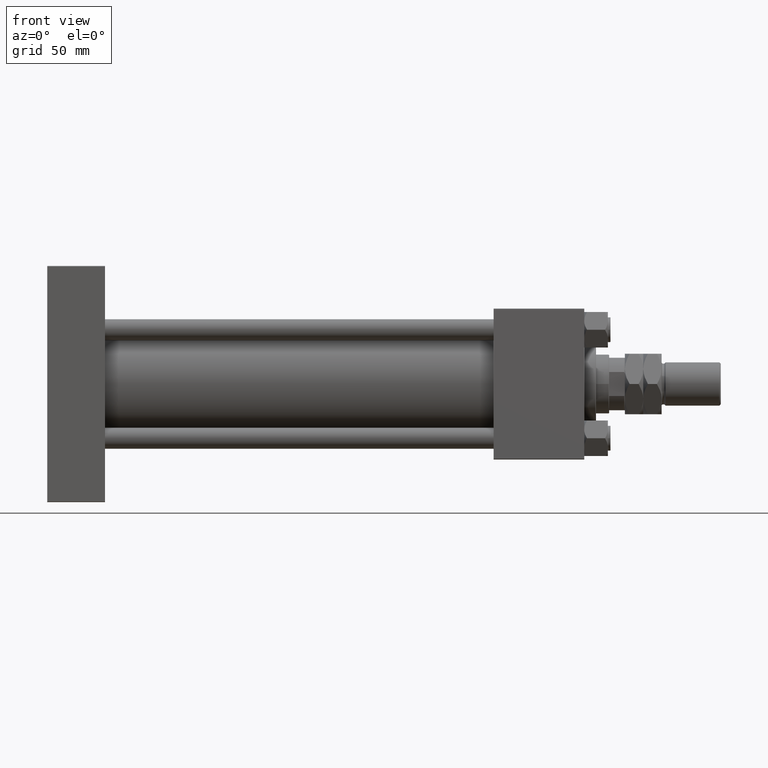
[diagram: clean part render]
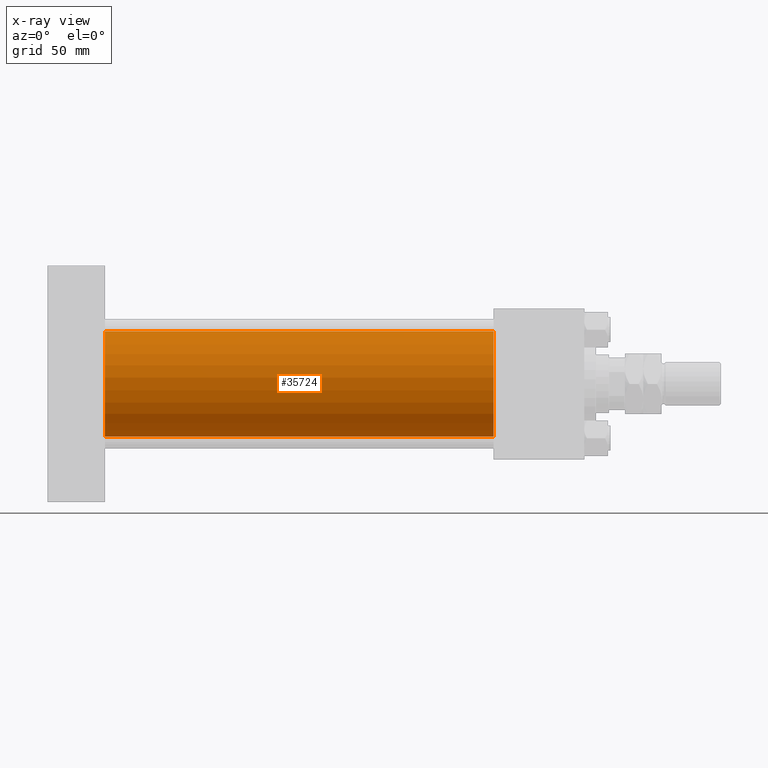
[diagram: x-ray — body ghosted, one internal face saturated and labeled with its STEP entity id]
A machine part, front view, then the same camera in x-ray: the body is ghosted and one INTERNAL B-rep face — a face not visible from any outside direction — is saturated and labeled: STEP entity #35724.
In plain terms, the highlighted cylindrical surface (partial cylindrical patch) has radius 40 mm, axis along (-1, -0, -0).
Its self-contained STEP definition (entity closure, byte-faithful):
#12 = ORIENTED_EDGE ( 'NONE', *, *, #8887, .T. ) ;
#172 = DIRECTION ( 'NONE',  ( 0.000000000000000000, 0.000000000000000000, -1.000000000000000000 ) ) ;
#655 = CARTESIAN_POINT ( 'NONE',  ( 44.00000000000000000, 2.296501982624201990E-15, -40.00000000000000000 ) ) ;
#2710 = CIRCLE ( 'NONE', #14992, 40.00000000000000000 ) ;
#4020 = DIRECTION ( 'NONE',  ( 1.000000000000000000, 0.000000000000000000, 0.000000000000000000 ) ) ;
#8190 = EDGE_CURVE ( 'NONE', #8948, #22600, #27939, .T. ) ;
#8554 = CARTESIAN_POINT ( 'NONE',  ( 339.9999999999999432, 2.296501982624201990E-15, -40.00000000000000000 ) ) ;
#8887 = EDGE_CURVE ( 'NONE', #34245, #45129, #36777, .T. ) ;
#8948 = VERTEX_POINT ( 'NONE', #38424 ) ;
#9819 = EDGE_CURVE ( 'NONE', #8948, #34245, #2710, .T. ) ;
#11422 = ORIENTED_EDGE ( 'NONE', *, *, #8190, .F. ) ;
#13649 = CIRCLE ( 'NONE', #41621, 40.00000000000000000 ) ;
#14992 = AXIS2_PLACEMENT_3D ( 'NONE', #53866, #4020, #172 ) ;
#19124 = EDGE_LOOP ( 'NONE', ( #41166, #12, #46108, #11422 ) ) ;
#20341 = DIRECTION ( 'NONE',  ( 0.000000000000000000, 0.000000000000000000, -1.000000000000000000 ) ) ;
#22600 = VERTEX_POINT ( 'NONE', #28819 ) ;
#24079 = EDGE_CURVE ( 'NONE', #22600, #45129, #13649, .T. ) ;
#24981 = DIRECTION ( 'NONE',  ( 1.000000000000000000, 0.000000000000000000, 0.000000000000000000 ) ) ;
#25257 = DIRECTION ( 'NONE',  ( -1.000000000000000000, -0.000000000000000000, -0.000000000000000000 ) ) ;
#27939 = LINE ( 'NONE', #30984, #50672 ) ;
#28126 = CARTESIAN_POINT ( 'NONE',  ( 339.9999999999999432, -2.602085213965210642E-15, 0.000000000000000000 ) ) ;
#28819 = CARTESIAN_POINT ( 'NONE',  ( 44.00000000000000000, -2.602085213965210642E-15, 40.00000000000000000 ) ) ;
#29193 = DIRECTION ( 'NONE',  ( 0.000000000000000000, 0.000000000000000000, 1.000000000000000000 ) ) ;
#30142 = CARTESIAN_POINT ( 'NONE',  ( 339.9999999999999432, 2.296501982624201990E-15, -40.00000000000000000 ) ) ;
#30984 = CARTESIAN_POINT ( 'NONE',  ( 339.9999999999999432, -2.602085213965210642E-15, 40.00000000000000000 ) ) ;
#32754 = FACE_OUTER_BOUND ( 'NONE', #19124, .T. ) ;
#32920 = CARTESIAN_POINT ( 'NONE',  ( 44.00000000000000000, -2.602085213965210642E-15, 0.000000000000000000 ) ) ;
#34245 = VERTEX_POINT ( 'NONE', #30142 ) ;
#35724 = ADVANCED_FACE ( 'NONE', ( #32754 ), #53861, .F. ) ;
#36777 = LINE ( 'NONE', #8554, #38584 ) ;
#37420 = DIRECTION ( 'NONE',  ( -1.000000000000000000, -0.000000000000000000, -0.000000000000000000 ) ) ;
#38424 = CARTESIAN_POINT ( 'NONE',  ( 339.9999999999999432, -2.602085213965210642E-15, 40.00000000000000000 ) ) ;
#38584 = VECTOR ( 'NONE', #25257, 1000.000000000000000 ) ;
#41166 = ORIENTED_EDGE ( 'NONE', *, *, #9819, .T. ) ;
#41621 = AXIS2_PLACEMENT_3D ( 'NONE', #32920, #24981, #20341 ) ;
#44130 = DIRECTION ( 'NONE',  ( -1.000000000000000000, -0.000000000000000000, -0.000000000000000000 ) ) ;
#45129 = VERTEX_POINT ( 'NONE', #655 ) ;
#46108 = ORIENTED_EDGE ( 'NONE', *, *, #24079, .F. ) ;
#47630 = AXIS2_PLACEMENT_3D ( 'NONE', #28126, #37420, #29193 ) ;
#50672 = VECTOR ( 'NONE', #44130, 1000.000000000000000 ) ;
#53861 = CYLINDRICAL_SURFACE ( 'NONE', #47630, 40.00000000000000000 ) ;
#53866 = CARTESIAN_POINT ( 'NONE',  ( 339.9999999999999432, -2.602085213965210642E-15, 0.000000000000000000 ) ) ;